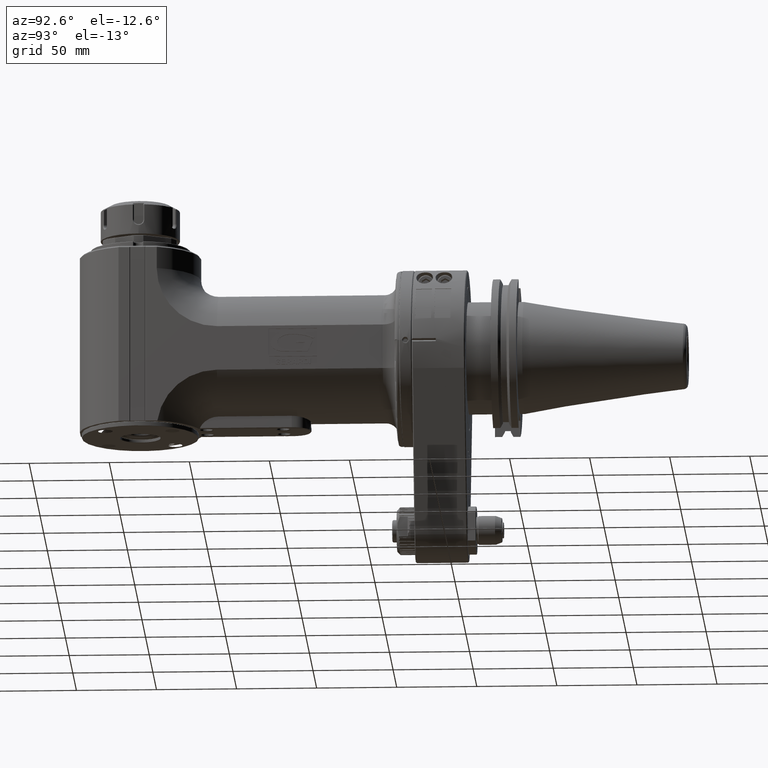
[diagram: clean part render]
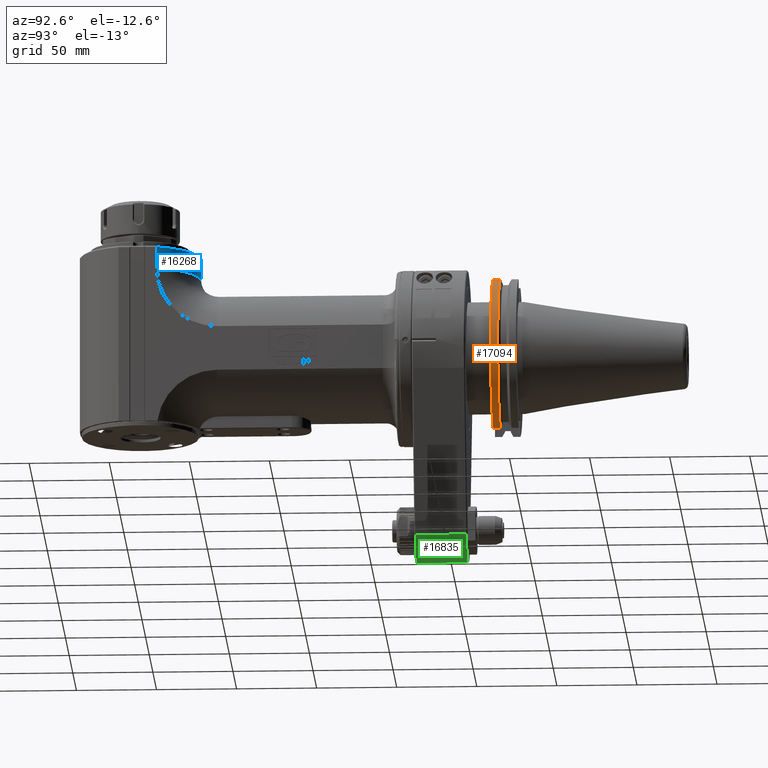
[diagram: same view with three faces highlighted in distinct colors, each labeled with its STEP entity id]
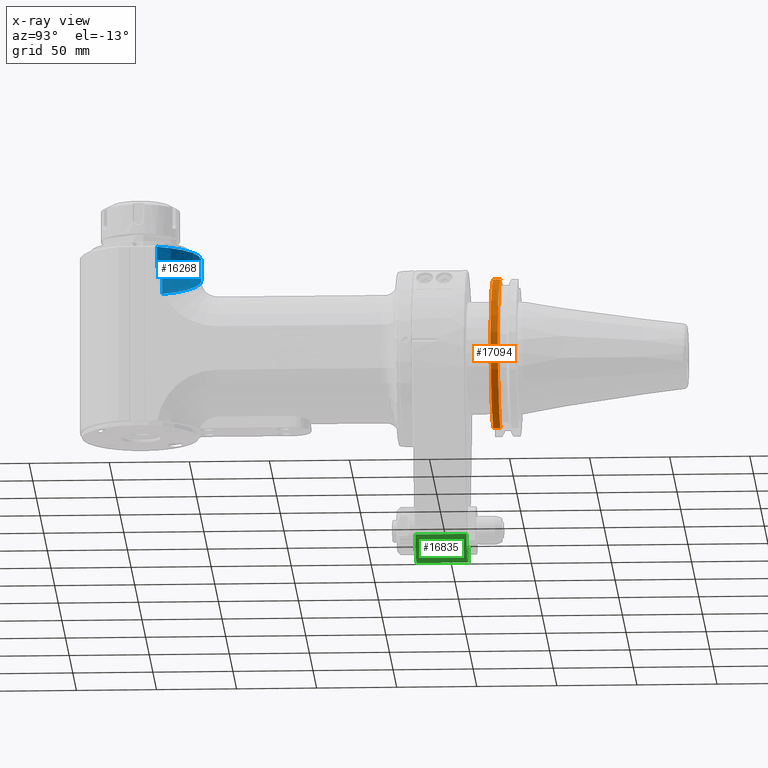
[diagram: x-ray of the same camera — body ghosted, the three highlighted faces saturated]
A machine part, auxiliary view with three faces highlighted in distinct colors.
The next image is the same camera in x-ray (body ghosted, the three faces saturated) — at least one of them is partly hidden behind the body in this view.
Their STEP definitions:

[orange] entity #17094 — the highlighted cylindrical surface (partial cylindrical patch) has radius 49.21 mm, axis along (0, -1, 0).
#2007=FACE_OUTER_BOUND('',#3070,.T.);
#3070=EDGE_LOOP('',(#15870,#15871,#15872,#15873));
#4023=CIRCLE('',#18810,49.21);
#4037=CIRCLE('',#18840,49.21);
#5399=LINE('',#32372,#6771);
#5411=LINE('',#32422,#6783);
#6771=VECTOR('',#23507,4.486823611981);
#6783=VECTOR('',#23559,4.486823611981);
#8393=VERTEX_POINT('',#32367);
#8394=VERTEX_POINT('',#32371);
#8395=VERTEX_POINT('',#32375);
#8406=VERTEX_POINT('',#32421);
#10869=EDGE_CURVE('',#8393,#8394,#5399,.T.);
#10871=EDGE_CURVE('',#8395,#8394,#4023,.T.);
#10892=EDGE_CURVE('',#8395,#8406,#5411,.T.);
#10904=EDGE_CURVE('',#8393,#8406,#4037,.T.);
#15870=ORIENTED_EDGE('',*,*,#10869,.F.);
#15871=ORIENTED_EDGE('',*,*,#10904,.T.);
#15872=ORIENTED_EDGE('',*,*,#10892,.F.);
#15873=ORIENTED_EDGE('',*,*,#10871,.T.);
#16144=CYLINDRICAL_SURFACE('',#18841,49.21);
#17094=ADVANCED_FACE('',(#2007),#16144,.T.);
#18810=AXIS2_PLACEMENT_3D('',#32376,#23511,#23512);
#18840=AXIS2_PLACEMENT_3D('',#32449,#23586,#23587);
#18841=AXIS2_PLACEMENT_3D('',#32450,#23588,#23589);
#23507=DIRECTION('',(-3.286013233872E-14,-1.,5.067586673924E-14));
#23511=DIRECTION('center_axis',(0.,1.,0.));
#23512=DIRECTION('ref_axis',(0.261125787441599,0.,0.965304782508097));
#23559=DIRECTION('',(3.325603754762E-14,1.,4.750862506803E-14));
#23586=DIRECTION('center_axis',(0.,-1.,0.));
#23587=DIRECTION('ref_axis',(0.261125787441599,0.,-0.965304782508097));
#23588=DIRECTION('center_axis',(0.,-1.,0.));
#23589=DIRECTION('ref_axis',(0.,0.,1.));
#32367=CARTESIAN_POINT('',(12.85,53.386823611981,-47.50264834722));
#32371=CARTESIAN_POINT('',(12.85,48.9000000000001,-47.50264834722));
#32372=CARTESIAN_POINT('',(12.85,53.386823611981,-47.50264834722));
#32375=CARTESIAN_POINT('',(12.85,48.9000000000001,47.50264834722));
#32376=CARTESIAN_POINT('Origin',(0.,48.9000000000003,-1.224644799147E-14));
#32421=CARTESIAN_POINT('',(12.85,53.386823611981,47.50264834722));
#32422=CARTESIAN_POINT('',(12.85,48.9000000000001,47.50264834722));
#32449=CARTESIAN_POINT('Origin',(0.,53.386823611982,-1.224644799147E-14));
#32450=CARTESIAN_POINT('Origin',(0.,175.845,-1.224644799147E-14));

[blue] entity #16268 — the highlighted cylindrical surface (partial cylindrical patch) has radius 40 mm, axis along (0, -0, 1).
#1181=FACE_OUTER_BOUND('',#2169,.T.);
#2169=EDGE_LOOP('',(#11548,#11549,#11550,#11551));
#3315=CIRCLE('',#17183,40.);
#3451=CIRCLE('',#17439,40.);
#4066=LINE('',#23749,#5438);
#4198=LINE('',#24730,#5570);
#5438=VECTOR('',#18912,13.4999980109401);
#5570=VECTOR('',#19564,13.4999981228601);
#6814=VERTEX_POINT('',#23745);
#6816=VERTEX_POINT('',#23748);
#6824=VERTEX_POINT('',#23773);
#7025=VERTEX_POINT('',#24728);
#8454=EDGE_CURVE('',#6816,#6814,#4066,.T.);
#8466=EDGE_CURVE('',#6814,#6824,#3315,.T.);
#8760=EDGE_CURVE('',#7025,#6824,#4198,.T.);
#8769=EDGE_CURVE('',#6816,#7025,#3451,.T.);
#11548=ORIENTED_EDGE('',*,*,#8466,.T.);
#11549=ORIENTED_EDGE('',*,*,#8760,.F.);
#11550=ORIENTED_EDGE('',*,*,#8769,.F.);
#11551=ORIENTED_EDGE('',*,*,#8454,.T.);
#15980=CYLINDRICAL_SURFACE('',#17438,40.);
#16268=ADVANCED_FACE('',(#1181),#15980,.T.);
#17183=AXIS2_PLACEMENT_3D('',#23777,#18928,#18929);
#17438=AXIS2_PLACEMENT_3D('',#24747,#19573,#19574);
#17439=AXIS2_PLACEMENT_3D('',#24748,#19575,#19576);
#18912=DIRECTION('',(1.22590523118099E-7,-4.54893183119996E-8,0.999999999999991));
#18928=DIRECTION('center_axis',(0.,0.,-1.));
#18929=DIRECTION('ref_axis',(-0.937499999999992,0.347985272676897,0.));
#19564=DIRECTION('',(-1.30358121104699E-7,-4.83867656897595E-8,0.99999999999999));
#19573=DIRECTION('center_axis',(0.,0.,1.));
#19574=DIRECTION('ref_axis',(-1.,0.,0.));
#19575=DIRECTION('center_axis',(0.,0.,-1.));
#19576=DIRECTION('ref_axis',(-0.937499999999992,0.347985272676897,0.));
#23745=CARTESIAN_POINT('',(-37.5000031535924,11.9193903969521,64.9999925954276));
#23748=CARTESIAN_POINT('',(-37.5,11.91941090708,51.5));
#23749=CARTESIAN_POINT('',(-37.5,11.91941090708,51.5));
#23773=CARTESIAN_POINT('',(37.5000031227525,11.9193903815777,64.9999926020201));
#23777=CARTESIAN_POINT('Origin',(-6.33715292456E-13,-2.000000000001,64.99998498282));
#24728=CARTESIAN_POINT('',(37.5,11.91941090708,51.5));
#24730=CARTESIAN_POINT('',(37.5,11.91941090708,51.5));
#24747=CARTESIAN_POINT('Origin',(0.,-2.,66.));
#24748=CARTESIAN_POINT('Origin',(0.,-2.,51.5));

[green] entity #16835 — the highlighted cylindrical surface (edge-blend (fillet) strip) has radius 20 mm, axis along (0, 1, 0).
#1748=FACE_OUTER_BOUND('',#2795,.T.);
#2795=EDGE_LOOP('',(#14705,#14706,#14707,#14708));
#3824=CIRCLE('',#18198,20.);
#3971=CIRCLE('',#18503,20.);
#5078=LINE('',#31457,#6450);
#5081=LINE('',#31465,#6453);
#6450=VECTOR('',#22570,31.9997170613216);
#6453=VECTOR('',#22581,31.9997169451016);
#7959=VERTEX_POINT('',#29870);
#7960=VERTEX_POINT('',#29874);
#8220=VERTEX_POINT('',#31455);
#8221=VERTEX_POINT('',#31461);
#10058=EDGE_CURVE('',#7960,#7959,#3824,.T.);
#10472=EDGE_CURVE('',#8220,#7959,#5078,.T.);
#10475=EDGE_CURVE('',#8220,#8221,#3971,.T.);
#10476=EDGE_CURVE('',#7960,#8221,#5081,.T.);
#14705=ORIENTED_EDGE('',*,*,#10475,.T.);
#14706=ORIENTED_EDGE('',*,*,#10476,.F.);
#14707=ORIENTED_EDGE('',*,*,#10058,.T.);
#14708=ORIENTED_EDGE('',*,*,#10472,.F.);
#16081=CYLINDRICAL_SURFACE('',#18504,20.);
#16835=ADVANCED_FACE('',(#1748),#16081,.T.);
#18198=AXIS2_PLACEMENT_3D('',#29875,#21744,#21745);
#18503=AXIS2_PLACEMENT_3D('',#31463,#22577,#22578);
#18504=AXIS2_PLACEMENT_3D('',#31464,#22579,#22580);
#21744=DIRECTION('center_axis',(0.,1.,0.));
#21745=DIRECTION('ref_axis',(1.,0.,0.));
#22570=DIRECTION('',(5.18968750168674E-7,-0.99999999999985,1.74178719849591E-7));
#22577=DIRECTION('center_axis',(0.,-1.,0.));
#22578=DIRECTION('ref_axis',(1.,0.,0.));
#22579=DIRECTION('center_axis',(0.,1.,0.));
#22580=DIRECTION('ref_axis',(1.,0.,0.));
#22581=DIRECTION('',(-5.18491262889474E-7,0.99999999999985,1.74026775347291E-7));
#29870=CARTESIAN_POINT('',(-18.9605538911104,0.5001677642414,-116.363622732145));
#29874=CARTESIAN_POINT('',(18.9605942252783,0.500185993759961,-116.363636273741));
#29875=CARTESIAN_POINT('Origin',(0.,0.500371987513666,-110.));
#31455=CARTESIAN_POINT('',(-18.9605942265989,32.4998140855906,-116.363636269772));
#31457=CARTESIAN_POINT('',(-18.96058517251,32.49983229424,-116.363633231));
#31461=CARTESIAN_POINT('',(18.9605946874922,32.4998129060925,-116.363636432687));
#31463=CARTESIAN_POINT('Origin',(0.,32.4996281711658,-110.));
#31464=CARTESIAN_POINT('Origin',(0.,0.,-110.));
#31465=CARTESIAN_POINT('',(18.96058516741,0.5001678186873,-116.3636332337));